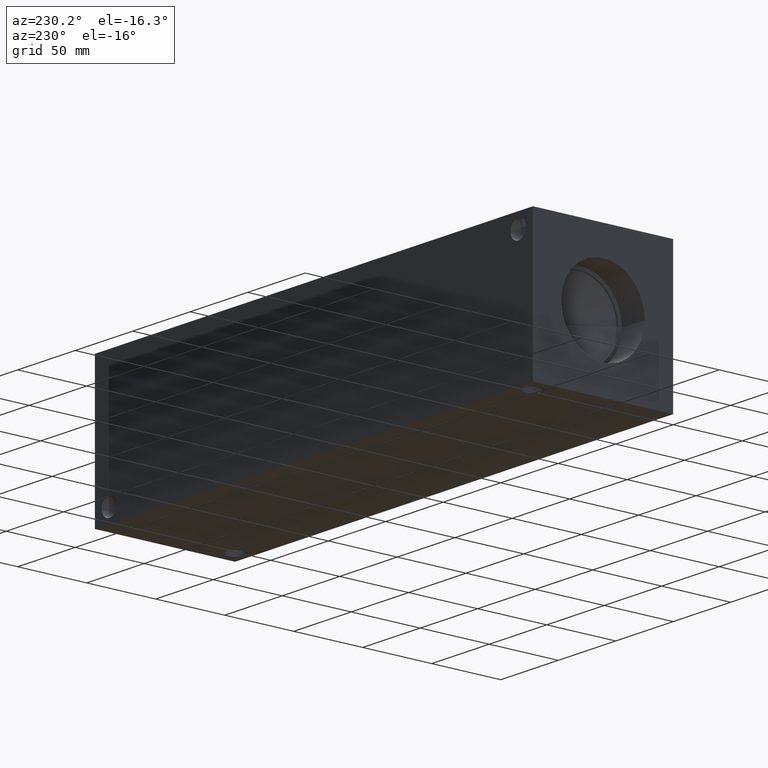
[diagram: clean part render]
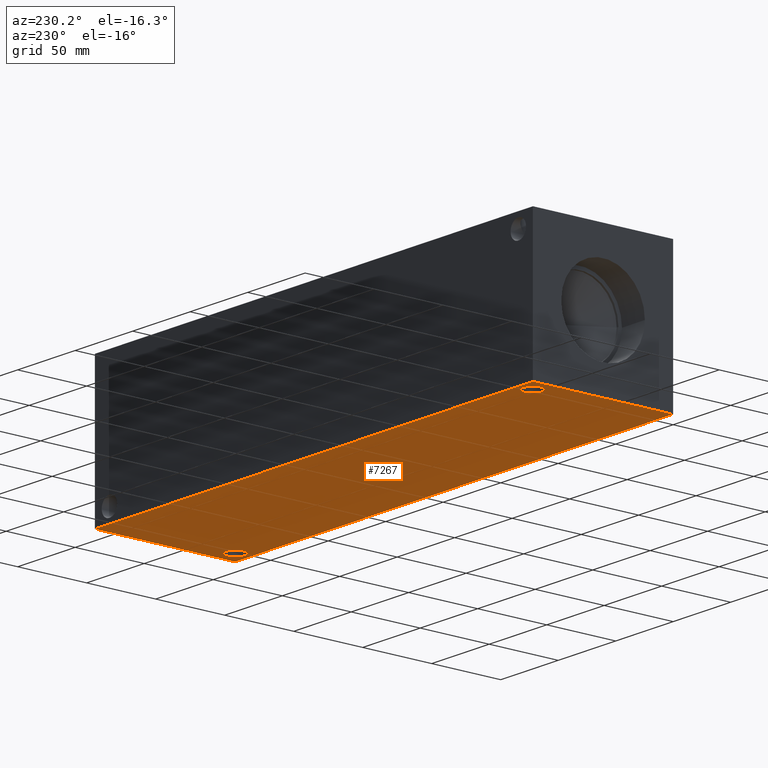
[diagram: same view with one face highlighted and labeled with its STEP entity id]
A machine part, auxiliary view. The second image highlights one B-rep face of the part: STEP entity #7267.
In plain terms, the highlighted planar face has unit normal (0, 0, 1).
Its self-contained STEP definition (entity closure, byte-faithful):
#91=CIRCLE('',#7565,6.7437);
#92=CIRCLE('',#7567,6.7437);
#172=FACE_BOUND('',#1189,.T.);
#173=FACE_BOUND('',#1190,.T.);
#406=PLANE('',#7622);
#772=FACE_OUTER_BOUND('',#1188,.T.);
#1188=EDGE_LOOP('',(#6483,#6484,#6485,#6486));
#1189=EDGE_LOOP('',(#6487));
#1190=EDGE_LOOP('',(#6488));
#1901=LINE('',#12358,#2619);
#1904=LINE('',#12363,#2622);
#1906=LINE('',#12367,#2624);
#1908=LINE('',#12370,#2626);
#2619=VECTOR('',#9007,10.);
#2622=VECTOR('',#9012,10.);
#2624=VECTOR('',#9016,10.);
#2626=VECTOR('',#9020,10.);
#3461=VERTEX_POINT('',#12250);
#3462=VERTEX_POINT('',#12254);
#3497=VERTEX_POINT('',#12356);
#3498=VERTEX_POINT('',#12357);
#3499=VERTEX_POINT('',#12362);
#3500=VERTEX_POINT('',#12366);
#4442=EDGE_CURVE('',#3461,#3461,#91,.T.);
#4444=EDGE_CURVE('',#3462,#3462,#92,.T.);
#4489=EDGE_CURVE('',#3497,#3498,#1901,.T.);
#4492=EDGE_CURVE('',#3499,#3497,#1904,.T.);
#4494=EDGE_CURVE('',#3500,#3499,#1906,.T.);
#4496=EDGE_CURVE('',#3498,#3500,#1908,.T.);
#6483=ORIENTED_EDGE('',*,*,#4496,.F.);
#6484=ORIENTED_EDGE('',*,*,#4489,.F.);
#6485=ORIENTED_EDGE('',*,*,#4492,.F.);
#6486=ORIENTED_EDGE('',*,*,#4494,.F.);
#6487=ORIENTED_EDGE('',*,*,#4442,.T.);
#6488=ORIENTED_EDGE('',*,*,#4444,.T.);
#7267=ADVANCED_FACE('',(#772,#172,#173),#406,.F.);
#7565=AXIS2_PLACEMENT_3D('',#12252,#8885,#8886);
#7567=AXIS2_PLACEMENT_3D('',#12256,#8890,#8891);
#7622=AXIS2_PLACEMENT_3D('',#12372,#9023,#9024);
#8885=DIRECTION('center_axis',(0.,0.,1.));
#8886=DIRECTION('ref_axis',(1.,0.,0.));
#8890=DIRECTION('center_axis',(0.,0.,1.));
#8891=DIRECTION('ref_axis',(1.,0.,0.));
#9007=DIRECTION('',(0.,-1.,0.));
#9012=DIRECTION('',(-1.,0.,0.));
#9016=DIRECTION('',(0.,1.,0.));
#9020=DIRECTION('',(1.,0.,0.));
#9023=DIRECTION('center_axis',(0.,0.,1.));
#9024=DIRECTION('ref_axis',(1.,0.,0.));
#12250=CARTESIAN_POINT('',(361.5563,10.3124,0.));
#12252=CARTESIAN_POINT('Origin',(368.3,10.3124,0.));
#12254=CARTESIAN_POINT('',(5.9563,91.2876,0.));
#12256=CARTESIAN_POINT('Origin',(12.7,91.2876,0.));
#12356=CARTESIAN_POINT('',(0.,101.6,0.));
#12357=CARTESIAN_POINT('',(0.,0.,0.));
#12358=CARTESIAN_POINT('',(0.,101.6,0.));
#12362=CARTESIAN_POINT('',(381.,101.6,0.));
#12363=CARTESIAN_POINT('',(381.,101.6,0.));
#12366=CARTESIAN_POINT('',(381.,0.,0.));
#12367=CARTESIAN_POINT('',(381.,0.,0.));
#12370=CARTESIAN_POINT('',(0.,0.,0.));
#12372=CARTESIAN_POINT('Origin',(190.5,50.8,0.));